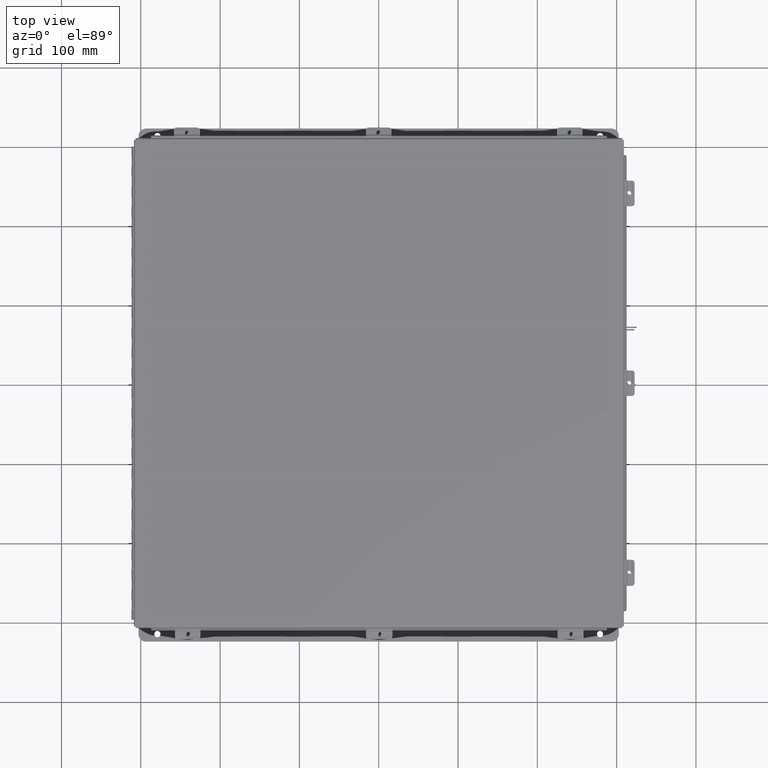
[diagram: clean part render]
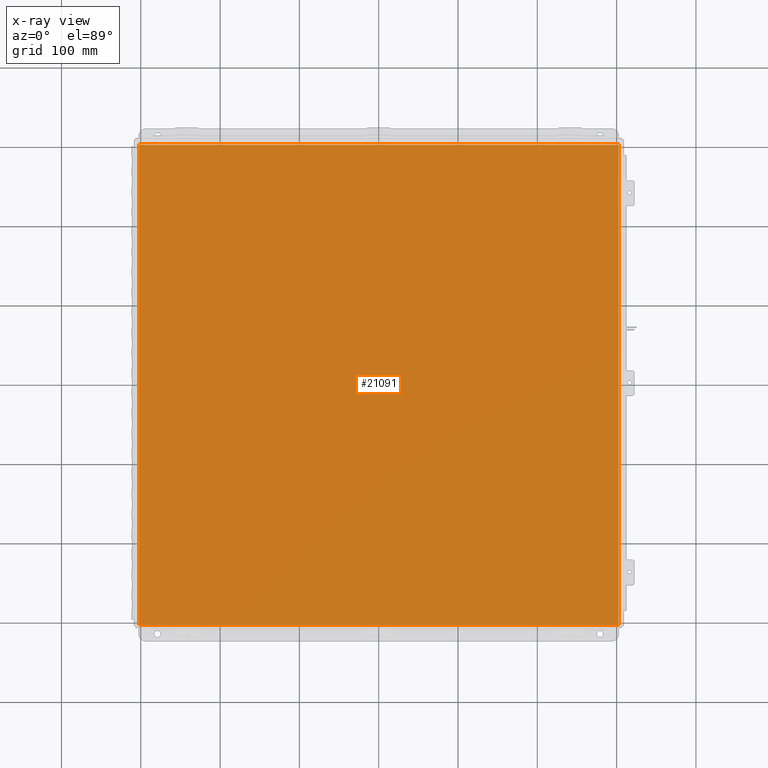
[diagram: x-ray — body ghosted, one internal face saturated and labeled with its STEP entity id]
A machine part, top view, then the same camera in x-ray: the body is ghosted and one INTERNAL B-rep face — a face not visible from any outside direction — is saturated and labeled: STEP entity #21091.
In plain terms, the highlighted planar face has unit normal (0, 0, -1).
Its self-contained STEP definition (entity closure, byte-faithful):
#7 = LINE ( 'NONE', #13372, #14719 ) ;
#1314 = VERTEX_POINT ( 'NONE', #12438 ) ;
#1718 = DIRECTION ( 'NONE',  ( -1.000000000000000000, 0.0000000000000000000, -0.0000000000000000000 ) ) ;
#2355 = VECTOR ( 'NONE', #8532, 39.37007874015748100 ) ;
#3110 = ORIENTED_EDGE ( 'NONE', *, *, #7997, .F. ) ;
#3548 = VECTOR ( 'NONE', #18024, 39.37007874015748100 ) ;
#5003 = LINE ( 'NONE', #18382, #10115 ) ;
#5100 = ORIENTED_EDGE ( 'NONE', *, *, #23564, .F. ) ;
#7997 = EDGE_CURVE ( 'NONE', #8402, #14559, #7, .T. ) ;
#8402 = VERTEX_POINT ( 'NONE', #18295 ) ;
#8532 = DIRECTION ( 'NONE',  ( -0.0000000000000000000, 1.000000000000000000, -0.0000000000000000000 ) ) ;
#10115 = VECTOR ( 'NONE', #12565, 39.37007874015748100 ) ;
#11208 = PLANE ( 'NONE',  #14133 ) ;
#11597 = CARTESIAN_POINT ( 'NONE',  ( 11.91230000000000000, -11.92530000000000000, 4.268512490100411300E-017 ) ) ;
#12021 = ORIENTED_EDGE ( 'NONE', *, *, #23520, .T. ) ;
#12438 = CARTESIAN_POINT ( 'NONE',  ( -11.91230000000000000, 11.92530000000000000, 4.268512490100411300E-017 ) ) ;
#12535 = LINE ( 'NONE', #16197, #2355 ) ;
#12565 = DIRECTION ( 'NONE',  ( -1.000000000000000000, -0.0000000000000000000, -0.0000000000000000000 ) ) ;
#12912 = ORIENTED_EDGE ( 'NONE', *, *, #18670, .T. ) ;
#13167 = DIRECTION ( 'NONE',  ( 0.0000000000000000000, 0.0000000000000000000, -1.000000000000000000 ) ) ;
#13372 = CARTESIAN_POINT ( 'NONE',  ( 11.91230000000000000, 11.92530000000000000, 4.268512490100411300E-017 ) ) ;
#14133 = AXIS2_PLACEMENT_3D ( 'NONE', #16974, #13167, #1718 ) ;
#14183 = CARTESIAN_POINT ( 'NONE',  ( -12.00000000000000200, -11.92530000000000000, 0.0000000000000000000 ) ) ;
#14559 = VERTEX_POINT ( 'NONE', #11597 ) ;
#14719 = VECTOR ( 'NONE', #24924, 39.37007874015748100 ) ;
#16197 = CARTESIAN_POINT ( 'NONE',  ( -11.91230000000000000, -11.92530000000000000, 4.268512490100411300E-017 ) ) ;
#16561 = CARTESIAN_POINT ( 'NONE',  ( -11.91230000000000000, -11.92529999999999800, 4.268512490100411300E-017 ) ) ;
#16772 = VERTEX_POINT ( 'NONE', #16561 ) ;
#16961 = EDGE_LOOP ( 'NONE', ( #3110, #12912, #5100, #12021 ) ) ;
#16974 = CARTESIAN_POINT ( 'NONE',  ( 0.0000000000000000000, 0.0000000000000000000, 0.0000000000000000000 ) ) ;
#17775 = FACE_OUTER_BOUND ( 'NONE', #16961, .T. ) ;
#18024 = DIRECTION ( 'NONE',  ( 1.000000000000000000, 0.0000000000000000000, 0.0000000000000000000 ) ) ;
#18295 = CARTESIAN_POINT ( 'NONE',  ( 11.91230000000000000, 11.92529999999999800, 4.268512490100411300E-017 ) ) ;
#18382 = CARTESIAN_POINT ( 'NONE',  ( -12.00000000000000200, 11.92530000000000000, 0.0000000000000000000 ) ) ;
#18670 = EDGE_CURVE ( 'NONE', #8402, #1314, #5003, .T. ) ;
#18887 = LINE ( 'NONE', #14183, #3548 ) ;
#21091 = ADVANCED_FACE ( 'NONE', ( #17775 ), #11208, .F. ) ;
#23520 = EDGE_CURVE ( 'NONE', #16772, #14559, #18887, .T. ) ;
#23564 = EDGE_CURVE ( 'NONE', #16772, #1314, #12535, .T. ) ;
#24924 = DIRECTION ( 'NONE',  ( -0.0000000000000000000, -1.000000000000000000, -0.0000000000000000000 ) ) ;